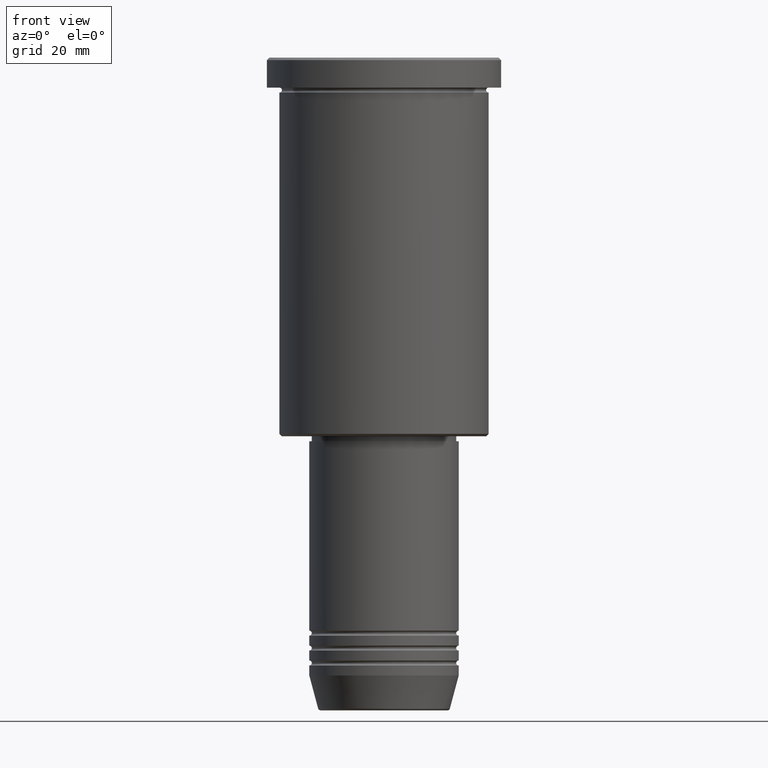
[diagram: clean part render]
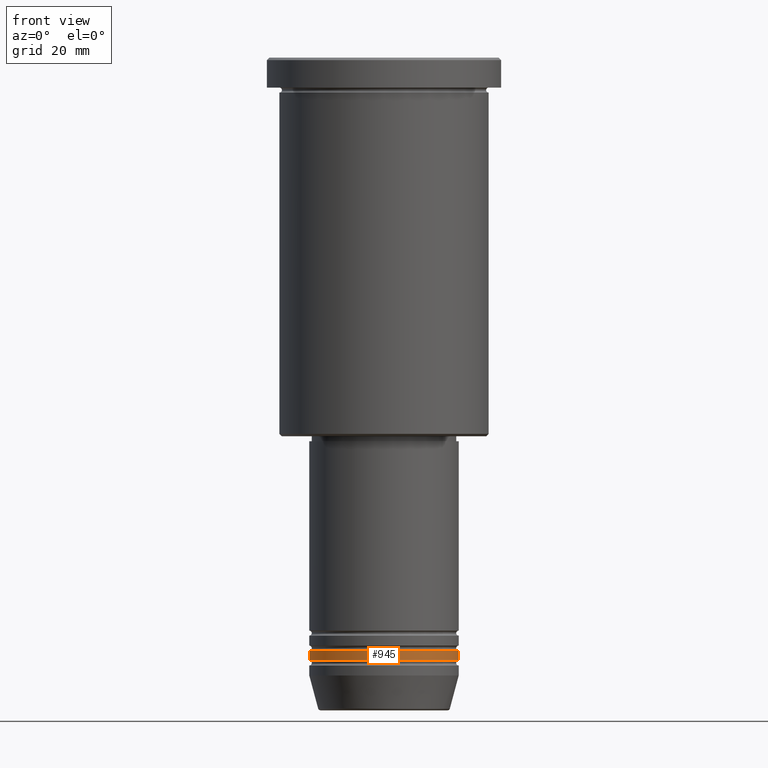
[diagram: same view with one face highlighted and labeled with its STEP entity id]
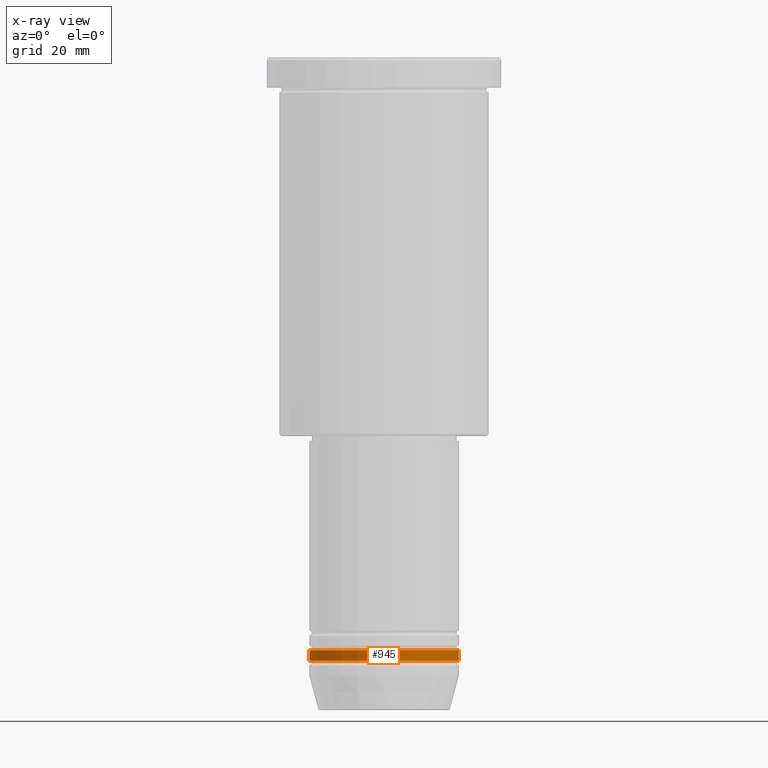
[diagram: x-ray of the same camera — body ghosted, the highlighted face saturated]
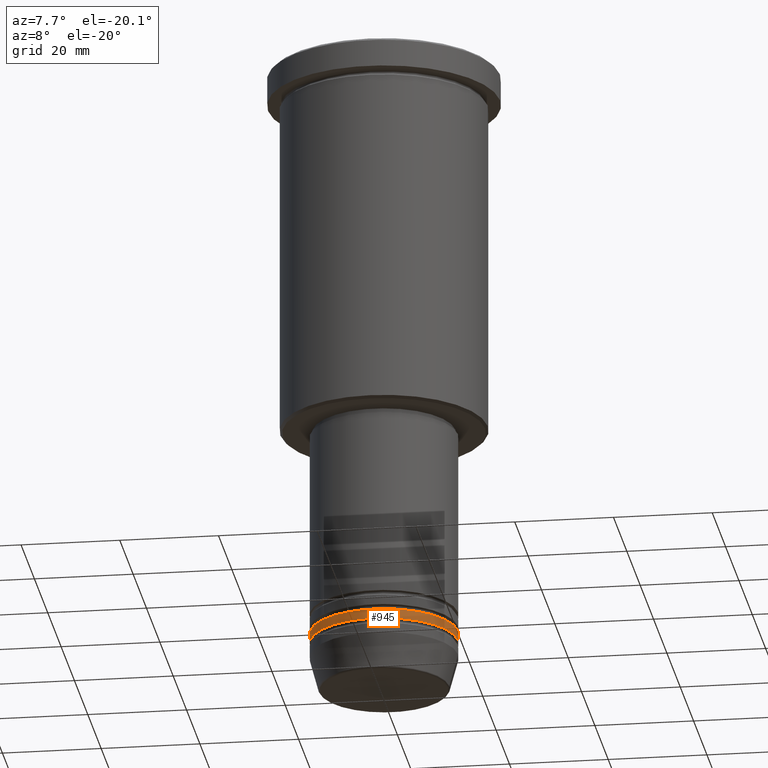
[diagram: same view with one face highlighted and labeled with its STEP entity id]
A machine part, front view. The second image highlights one B-rep face of the part: STEP entity #945.
The next image is the same camera in x-ray: the body ghosted, the highlighted face saturated — about 0% of this face is hidden behind the body in this view.
A second angle (auxiliary view) of the same face is appended — the face is thin or edge-on in the first view.
In plain terms, the highlighted cylindrical surface (partial cylindrical patch) has radius 15 mm, axis along (-0, -0, 1).
Its self-contained STEP definition (entity closure, byte-faithful):
#63 = EDGE_CURVE ( 'NONE', #517, #727, #525, .T. ) ;
#101 = EDGE_CURVE ( 'NONE', #130, #727, #895, .T. ) ;
#124 = CARTESIAN_POINT ( 'NONE',  ( 15.00000000000000000, 0.000000000000000000, -120.9999999999999716 ) ) ;
#130 = VERTEX_POINT ( 'NONE', #124 ) ;
#136 = CIRCLE ( 'NONE', #472, 15.00000000000000000 ) ;
#201 = DIRECTION ( 'NONE',  ( 1.000000000000000000, 0.000000000000000000, 0.000000000000000000 ) ) ;
#202 = VERTEX_POINT ( 'NONE', #331 ) ;
#236 = ORIENTED_EDGE ( 'NONE', *, *, #428, .T. ) ;
#249 = CARTESIAN_POINT ( 'NONE',  ( 0.000000000000000000, 0.000000000000000000, -120.9999999999999716 ) ) ;
#275 = DIRECTION ( 'NONE',  ( -0.000000000000000000, -0.000000000000000000, 1.000000000000000000 ) ) ;
#283 = ORIENTED_EDGE ( 'NONE', *, *, #863, .F. ) ;
#292 = EDGE_LOOP ( 'NONE', ( #283, #236, #354, #450 ) ) ;
#294 = CARTESIAN_POINT ( 'NONE',  ( 0.000000000000000000, 0.000000000000000000, 0.000000000000000000 ) ) ;
#312 = AXIS2_PLACEMENT_3D ( 'NONE', #294, #569, #999 ) ;
#331 = CARTESIAN_POINT ( 'NONE',  ( -15.00000000000000000, 1.836970198721029589E-15, -120.9999999999999716 ) ) ;
#354 = ORIENTED_EDGE ( 'NONE', *, *, #101, .T. ) ;
#369 = CARTESIAN_POINT ( 'NONE',  ( 15.00000000000000000, 0.000000000000000000, 0.000000000000000000 ) ) ;
#392 = DIRECTION ( 'NONE',  ( -0.000000000000000000, -0.000000000000000000, 1.000000000000000000 ) ) ;
#428 = EDGE_CURVE ( 'NONE', #202, #130, #136, .T. ) ;
#450 = ORIENTED_EDGE ( 'NONE', *, *, #63, .F. ) ;
#463 = FACE_OUTER_BOUND ( 'NONE', #292, .T. ) ;
#472 = AXIS2_PLACEMENT_3D ( 'NONE', #249, #828, #654 ) ;
#480 = CARTESIAN_POINT ( 'NONE',  ( 0.000000000000000000, 0.000000000000000000, -118.9999999999999858 ) ) ;
#517 = VERTEX_POINT ( 'NONE', #670 ) ;
#525 = CIRCLE ( 'NONE', #1045, 15.00000000000000000 ) ;
#547 = VECTOR ( 'NONE', #275, 1000.000000000000000 ) ;
#563 = LINE ( 'NONE', #927, #547 ) ;
#569 = DIRECTION ( 'NONE',  ( -0.000000000000000000, -0.000000000000000000, 1.000000000000000000 ) ) ;
#643 = DIRECTION ( 'NONE',  ( -0.000000000000000000, -0.000000000000000000, 1.000000000000000000 ) ) ;
#654 = DIRECTION ( 'NONE',  ( 1.000000000000000000, 0.000000000000000000, 0.000000000000000000 ) ) ;
#670 = CARTESIAN_POINT ( 'NONE',  ( -15.00000000000000000, 1.836970198721029589E-15, -118.9999999999999858 ) ) ;
#727 = VERTEX_POINT ( 'NONE', #1089 ) ;
#777 = VECTOR ( 'NONE', #643, 1000.000000000000000 ) ;
#828 = DIRECTION ( 'NONE',  ( -0.000000000000000000, -0.000000000000000000, 1.000000000000000000 ) ) ;
#833 = CYLINDRICAL_SURFACE ( 'NONE', #312, 15.00000000000000000 ) ;
#863 = EDGE_CURVE ( 'NONE', #202, #517, #563, .T. ) ;
#895 = LINE ( 'NONE', #369, #777 ) ;
#927 = CARTESIAN_POINT ( 'NONE',  ( -15.00000000000000000, 1.836970198721029589E-15, 0.000000000000000000 ) ) ;
#945 = ADVANCED_FACE ( 'NONE', ( #463 ), #833, .T. ) ;
#999 = DIRECTION ( 'NONE',  ( 1.000000000000000000, 0.000000000000000000, 0.000000000000000000 ) ) ;
#1045 = AXIS2_PLACEMENT_3D ( 'NONE', #480, #392, #201 ) ;
#1089 = CARTESIAN_POINT ( 'NONE',  ( 15.00000000000000000, 0.000000000000000000, -118.9999999999999858 ) ) ;